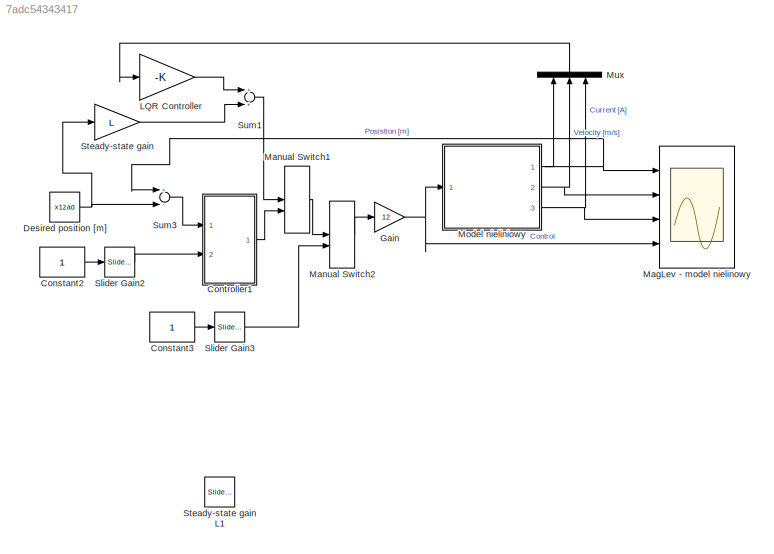
MODEL slx_7adc54343417
KIND model
CONFIG AbsTol = auto
CONFIG FixedStep = auto
CONFIG MaxStep = auto
CONFIG MinStep = auto
CONFIG RelTol = 1e-3
CONFIG SampleTimeConstraint = Unconstrained
CONFIG Solver = ode45
CONFIG SolverMode = SingleTasking
CONFIG SolverName = ode45
CONFIG StartTime = 0.0
CONFIG StopTime = 30
BLOCK [Constant] Constant2
BLOCK [Constant] Constant3
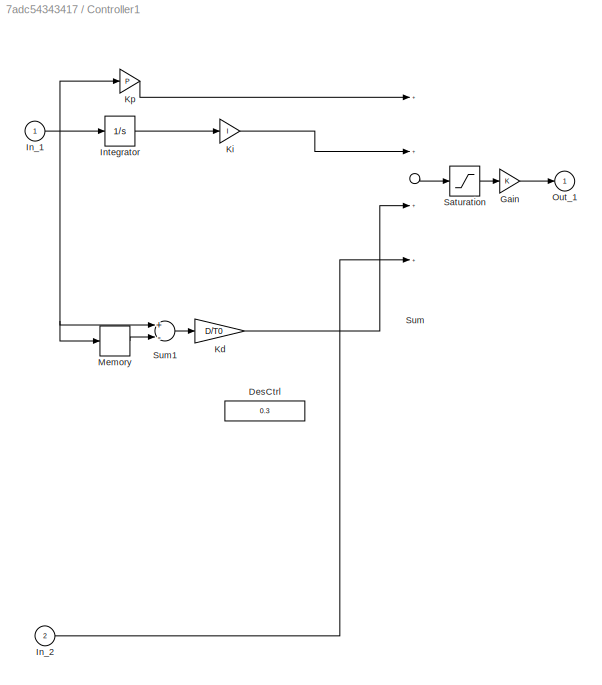
BLOCK [SubSystem] Controller1
  Ports = [2, 1]
  RequestExecContextInheritance = off
  Variant = off
BLOCK [Constant] Controller1/DesCtrl
  Value = 0.3
BLOCK [Gain] Controller1/Gain
BLOCK [Inport] Controller1/In_1
  IconDisplay = Port number
BLOCK [Inport] Controller1/In_2
  IconDisplay = Port number
  Port = 2
BLOCK [Integrator] Controller1/Integrator
  InitialCondition = 0*4e-5
  LimitOutput = on
  LowerSaturationLimit = -1
  Ports = [1, 1]
  UpperSaturationLimit = 1
BLOCK [Gain] Controller1/Kd
  Gain = D/T0
BLOCK [Gain] Controller1/Ki
  Gain = I
BLOCK [Gain] Controller1/Kp
  Gain = P
BLOCK [Memory] Controller1/Memory
BLOCK [Outport] Controller1/Out_1
  IconDisplay = Port number
  InitialOutput = 0
BLOCK [Saturate] Controller1/Saturation
  InputPortMap = u0
  LowerLimit = 0
  Ports = [1, 1]
  UpperLimit = 1
BLOCK [Sum] Controller1/Sum
  Inputs = ++++
  Ports = [4, 1]
BLOCK [Sum] Controller1/Sum1
  Inputs = +-
  Ports = [2, 1]
BLOCK [Constant] Desired position [m] 
  Value = x1zad
BLOCK [Gain] Gain
  Gain = 12
  OutDataTypeStr = Inherit: Inherit via internal rule
  ParamDataTypeStr = Inherit: Inherit via internal rule
  SaturateOnIntegerOverflow = off
BLOCK [Gain] LQR Controller
  Gain = -K
  Multiplication = Matrix(K*u)
  OutDataTypeStr = Inherit: Inherit via internal rule
  ParamDataTypeStr = Inherit: Inherit via internal rule
  SaturateOnIntegerOverflow = off
BLOCK [Scope] MagLev - model nielinowy
  NumInputPorts = 4
  Ports = [4]
  ScopeSpecificationString = Simulink.scopes.TimeScopeBlockCfg('CurrentConfiguration', extmgr.ConfigurationSet(extmgr.Configuration('Core','General UI',true),extmgr.Configuration('Core','Source UI',true),extmgr.Configuration('Sources','WiredSimulink',true,'DataLogging',true,'DataLoggingVariableName','ModelNieliniowy','DataLoggingSaveFormat','StructureWithTime','DataLoggingMaxPoints','10000','DataLoggingDecimation','1','DataLo...<+3834ch>
BLOCK [ManualSwitch] Manual Switch1
BLOCK [ManualSwitch] Manual Switch2
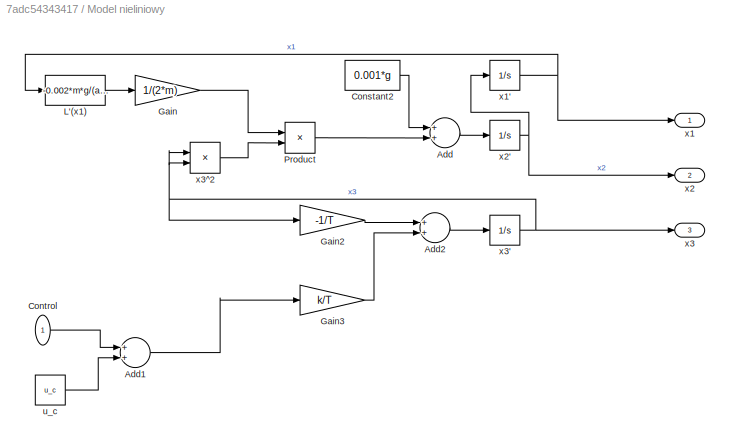
BLOCK [SubSystem] Model nieliniowy
  Ports = [1, 3]
  RequestExecContextInheritance = off
  Variant = off
BLOCK [Sum] Model nieliniowy/Add
  InputSameDT = off
  OutDataTypeStr = Inherit: Inherit via internal rule
  Ports = [2, 1]
  SaturateOnIntegerOverflow = off
BLOCK [Sum] Model nieliniowy/Add1
  InputSameDT = off
  OutDataTypeStr = Inherit: Inherit via internal rule
  Ports = [2, 1]
  SaturateOnIntegerOverflow = off
BLOCK [Sum] Model nieliniowy/Add2
  InputSameDT = off
  OutDataTypeStr = Inherit: Inherit via internal rule
  Ports = [2, 1]
  SaturateOnIntegerOverflow = off
BLOCK [Constant] Model nieliniowy/Constant2
  Value = 0.001*g
BLOCK [Inport] Model nieliniowy/Control
  IconDisplay = Port number
BLOCK [Gain] Model nieliniowy/Gain
  Gain = 1/(2*m)
  OutDataTypeStr = Inherit: Inherit via internal rule
  ParamDataTypeStr = Inherit: Inherit via internal rule
  SaturateOnIntegerOverflow = off
BLOCK [Gain] Model nieliniowy/Gain2
  Gain = -1/T
  OutDataTypeStr = Inherit: Inherit via internal rule
  ParamDataTypeStr = Inherit: Inherit via internal rule
  SaturateOnIntegerOverflow = off
BLOCK [Gain] Model nieliniowy/Gain3
  Gain = k/T
  OutDataTypeStr = Inherit: Inherit via internal rule
  ParamDataTypeStr = Inherit: Inherit via internal rule
  SaturateOnIntegerOverflow = off
BLOCK [Fcn] Model nieliniowy/L'(x1)
  Expr = -0.002*m*g/(a*u+b)^2
BLOCK [Product] Model nieliniowy/Product
  InputSameDT = off
  OutDataTypeStr = Inherit: Inherit via internal rule
  Ports = [2, 1]
  RndMeth = Floor
  SaturateOnIntegerOverflow = off
BLOCK [Constant] Model nieliniowy/u_c
  Value = u_c
BLOCK [Outport] Model nieliniowy/x1
  IconDisplay = Port number
BLOCK [Integrator] Model nieliniowy/x1'
  InitialCondition = x10
  LowerSaturationLimit = 0
  Ports = [1, 1]
  UpperSaturationLimit = 0.03
BLOCK [Outport] Model nieliniowy/x2
  IconDisplay = Port number
  Port = 2
BLOCK [Integrator] Model nieliniowy/x2'
  InitialCondition = x20
  Ports = [1, 1]
BLOCK [Outport] Model nieliniowy/x3
  IconDisplay = Port number
  Port = 3
BLOCK [Integrator] Model nieliniowy/x3'
  InitialCondition = x30
  LimitOutput = on
  LowerSaturationLimit = 0
  Ports = [1, 1]
  UpperSaturationLimit = 10
BLOCK [Product] Model nieliniowy/x3^2
  InputSameDT = off
  OutDataTypeStr = Inherit: Inherit via internal rule
  Ports = [2, 1]
  RndMeth = Floor
  SaturateOnIntegerOverflow = off
BLOCK [Mux] Mux
  DisplayOption = bar
  Inputs = 3
  Ports = [3, 1]
BLOCK [Reference] Slider Gain2  REF=simulink/Math
Operations/Slider
Gain
  Ports = [1, 1]
  SourceBlock = simulink/Math\nOperations/Slider\nGain
  SourceType = Slider Gain
BLOCK [Reference] Slider Gain3  REF=simulink/Math
Operations/Slider
Gain
  Ports = [1, 1]
  SourceBlock = simulink/Math\nOperations/Slider\nGain
  SourceType = Slider Gain
BLOCK [Gain] Steady-state gain
  Gain = L
  OutDataTypeStr = Inherit: Inherit via internal rule
  ParamDataTypeStr = Inherit: Inherit via internal rule
  SaturateOnIntegerOverflow = off
BLOCK [Reference] Steady-state gain L1  REF=simulink/Math
Operations/Slider
Gain
  Ports = [1, 1]
  SourceBlock = simulink/Math\nOperations/Slider\nGain
  SourceType = Slider Gain
BLOCK [Sum] Sum1
  Ports = [2, 1]
BLOCK [Sum] Sum3
  Inputs = +-
  Ports = [2, 1]
LINE Constant2:1 -> Slider Gain2:1
LINE Constant3:1 -> Slider Gain3:1
LINE Controller1/Gain:1 -> Controller1/Out_1:1
NET Controller1/In_1:1 -> Controller1/Integrator:1, Controller1/Kp:1, Controller1/Memory:1, Controller1/Sum1:1
LINE Controller1/In_2:1 -> Controller1/Sum:4
LINE Controller1/Integrator:1 -> Controller1/Ki:1
LINE Controller1/Kd:1 -> Controller1/Sum:3
LINE Controller1/Ki:1 -> Controller1/Sum:2
LINE Controller1/Kp:1 -> Controller1/Sum:1
LINE Controller1/Memory:1 -> Controller1/Sum1:2
LINE Controller1/Saturation:1 -> Controller1/Gain:1
LINE Controller1/Sum1:1 -> Controller1/Kd:1
LINE Controller1/Sum:1 -> Controller1/Saturation:1
LINE Controller1:1 -> Manual Switch1:2
NET Desired position [m] :1 -> Steady-state gain:1, Sum3:2
NET Gain:1 -> MagLev - model nielinowy:4, Model nieliniowy:1
LINE LQR Controller:1 -> Sum1:1
LINE Manual Switch1:1 -> Manual Switch2:1
LINE Manual Switch2:1 -> Gain:1
LINE Model nieliniowy/Add1:1 -> Model nieliniowy/Gain3:1
LINE Model nieliniowy/Add2:1 -> Model nieliniowy/x3':1
LINE Model nieliniowy/Add:1 -> Model nieliniowy/x2':1
LINE Model nieliniowy/Constant2:1 -> Model nieliniowy/Add:1
LINE Model nieliniowy/Control:1 -> Model nieliniowy/Add1:1
LINE Model nieliniowy/Gain2:1 -> Model nieliniowy/Add2:1
LINE Model nieliniowy/Gain3:1 -> Model nieliniowy/Add2:2
LINE Model nieliniowy/Gain:1 -> Model nieliniowy/Product:1
LINE Model nieliniowy/L'(x1):1 -> Model nieliniowy/Gain:1
LINE Model nieliniowy/Product:1 -> Model nieliniowy/Add:2
LINE Model nieliniowy/u_c:1 -> Model nieliniowy/Add1:2
NET Model nieliniowy/x1':1 -> Model nieliniowy/L'(x1):1, Model nieliniowy/x1:1
NET Model nieliniowy/x2':1 -> Model nieliniowy/x1':1, Model nieliniowy/x2:1
NET Model nieliniowy/x3':1 -> Model nieliniowy/Gain2:1, Model nieliniowy/x3:1, Model nieliniowy/x3^2:1, Model nieliniowy/x3^2:2
LINE Model nieliniowy/x3^2:1 -> Model nieliniowy/Product:2
NET Model nieliniowy:1 -> MagLev - model nielinowy:1, Mux:1, Sum3:1
NET Model nieliniowy:2 -> MagLev - model nielinowy:2, Mux:2
NET Model nieliniowy:3 -> MagLev - model nielinowy:3, Mux:3
LINE Mux:1 -> LQR Controller:1
LINE Slider Gain2:1 -> Controller1:2
LINE Slider Gain3:1 -> Manual Switch2:2
LINE Steady-state gain:1 -> Sum1:2
LINE Sum1:1 -> Manual Switch1:1
LINE Sum3:1 -> Controller1:1
note: NET lines group one-source signal fan-out (src -> all destinations, sorted); 1:1 wires keep LINE
